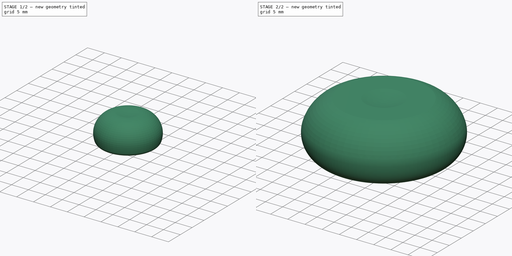
[diagram: build sequence overview — one tinted view per stage of 2, left to right]
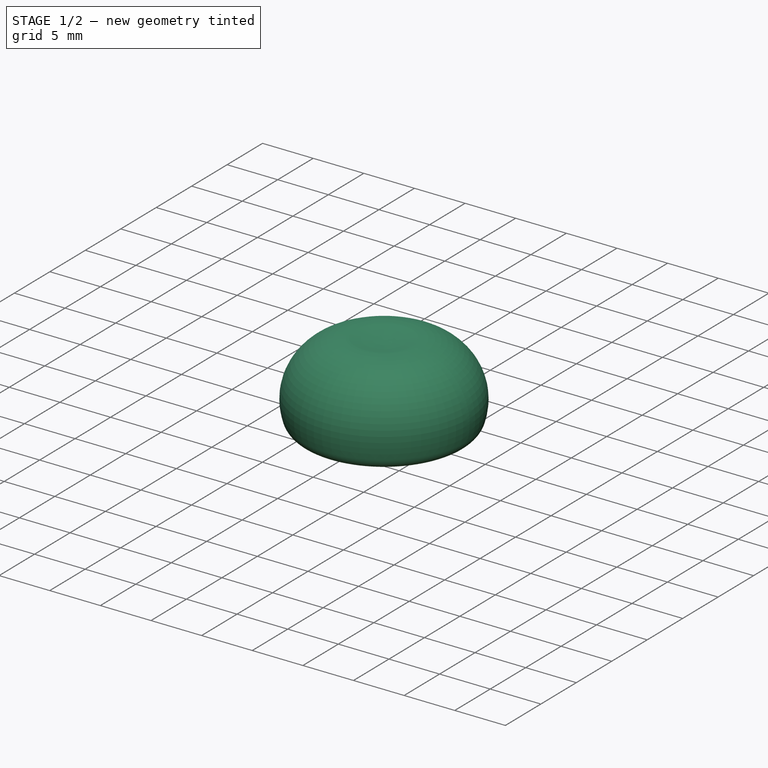
[diagram: stage 1 of 2 — iso view after this stage's code; geometry added in this stage tinted green]
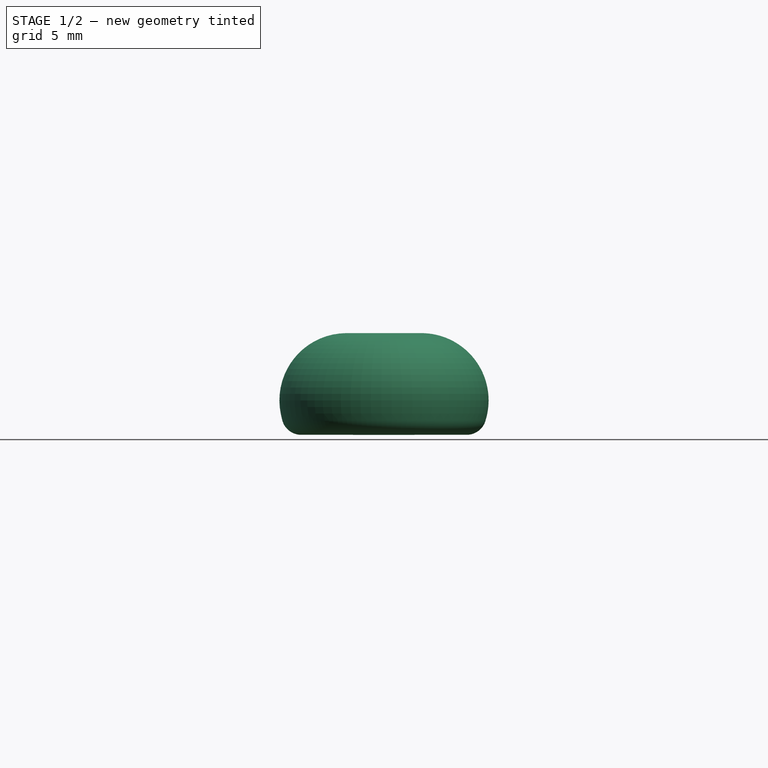
[diagram: stage 1 of 2 — front view after this stage's code; geometry added in this stage tinted green]
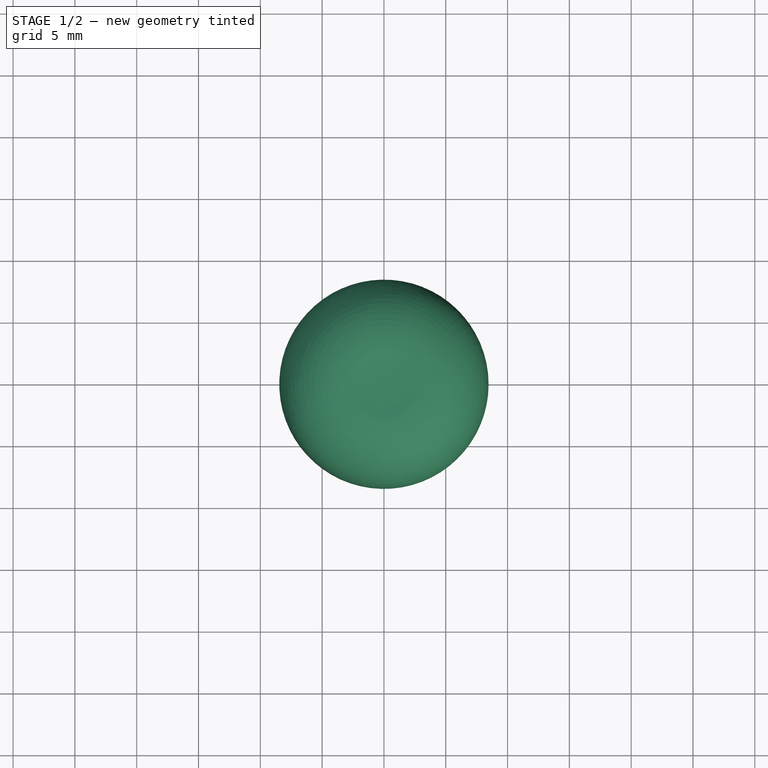
[diagram: stage 1 of 2 — top view after this stage's code; geometry added in this stage tinted green]
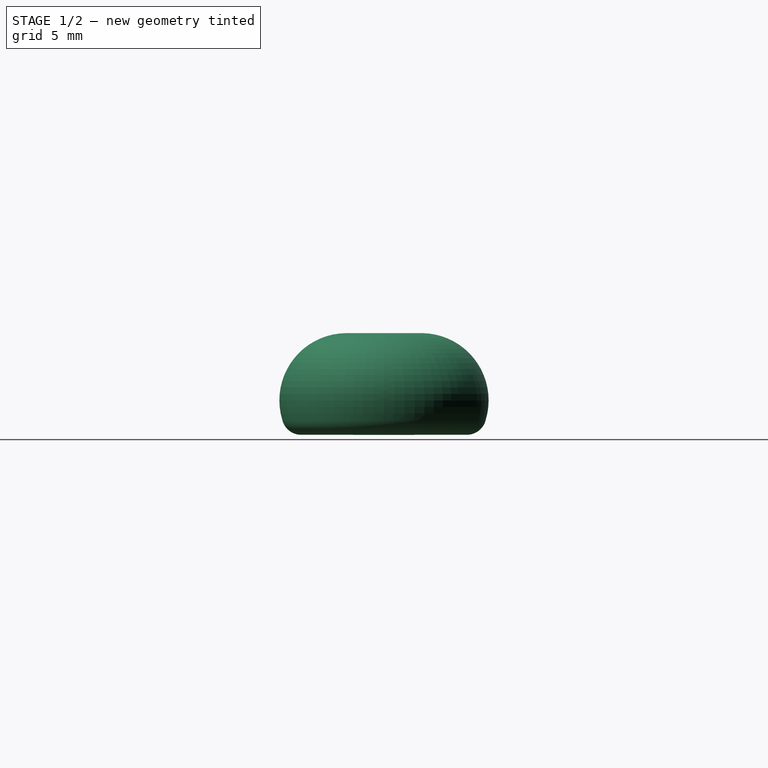
[diagram: stage 1 of 2 — right view after this stage's code; geometry added in this stage tinted green]
FCSTD DOCUMENT  (FreeCAD 1.0R38641 +468 (Git))
Label: joystick_mushroom
License: All rights reserved
LicenseURL: http://en.wikipedia.org/wiki/All_rights_reserved
objects: Sketcher::SketchObject×2, PartDesign::Revolution×1, PartDesign::Pocket×1, PartDesign::Body×1
note: 11 computed .brp shape members not serialized (recipe doc carries the construction recipe); baked Part::Feature solids carry a one-line shape summary decoded from their .brp

FEATURE [Sketcher::SketchObject] Sketch
  ArcFitTolerance = 1e-06
  AttachmentSupport = -> [XZ_Plane]
  FullyConstrained = false
  MakeInternals = false
  MapMode = 5
  Placement = pos=(0,0,0) rot=(1,0,0;1.5708rad)
  sketch-geometry (7):
    g0: ArcOfCircle CenterX=0 CenterY=25.6717 CenterZ=0 NormalX=0 NormalY=0 NormalZ=1 AngleXU=0 Radius=17.6717 StartAngle=4.71239 EndAngle=4.87262
    g1: LineSegment StartX=0 StartY=0 StartZ=0 EndX=-3.2e-15 EndY=8 EndZ=0
    g2: LineSegment StartX=0 StartY=0 StartZ=0 EndX=2.5 EndY=0 EndZ=0
    g3: LineSegment StartX=2.5 StartY=0 StartZ=0 EndX=2.5 EndY=4 EndZ=0
    g4: ArcOfCircle CenterX=2.46182 CenterY=1.32381 CenterZ=0 NormalX=0 NormalY=0 NormalZ=1 AngleXU=0 Radius=2.67647 StartAngle=0.00729041 EndAngle=1.55653
    g5: ArcOfCircle CenterX=6.69787 CenterY=1.58348 CenterZ=0 NormalX=0 NormalY=0 NormalZ=1 AngleXU=0 Radius=1.57804 StartAngle=3.29438 EndAngle=6.0451
    g6: ArcOfCircle CenterX=3.02562 CenterY=2.79029 CenterZ=0 NormalX=0 NormalY=0 NormalZ=1 AngleXU=0 Radius=5.43998 StartAngle=5.98869 EndAngle=7.8919
  constraints (15):
    c: Vertical(g0,g-1)
    c: Vertical(g0,g-1)
    c: Coincident(g1,g-1)
    c: Coincident(g1,g0)
    c: Coincident(g2,g1)
    c: PointOnObject(g2,g-1)
    c: DistanceX(g2,g2) = 2.5
    c: Coincident(g3,g2)
    c: Vertical(g3)
    c: DistanceY(g1,g1) = 8
    c: DistanceY(g3,g3) = 4
    c: Coincident(g4,g3)
    c: Coincident(g5,g4)
    c: Coincident(g6,g0)
    c: Coincident(g5,g6)
FEATURE [PartDesign::Revolution] Revolution
  Angle = 360
  Angle2 = 60
  Axis = (0,2e-16,1)
  Base = (0,0,0)
  Placement = pos=(0,0,0) rot=(1,0,0;1.5708rad)
  Profile = -> Sketch
  ReferenceAxis = -> Sketch [V_Axis]
  Reversed = true
  Suppressed = false
  Type = 0
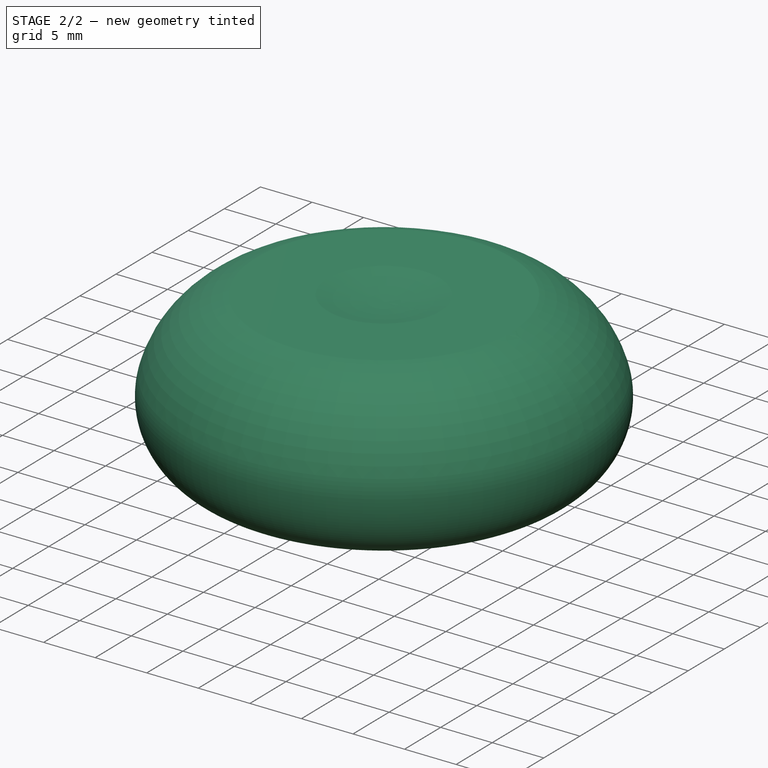
[diagram: stage 2 of 2 — iso view after this stage's code; geometry added in this stage tinted green]
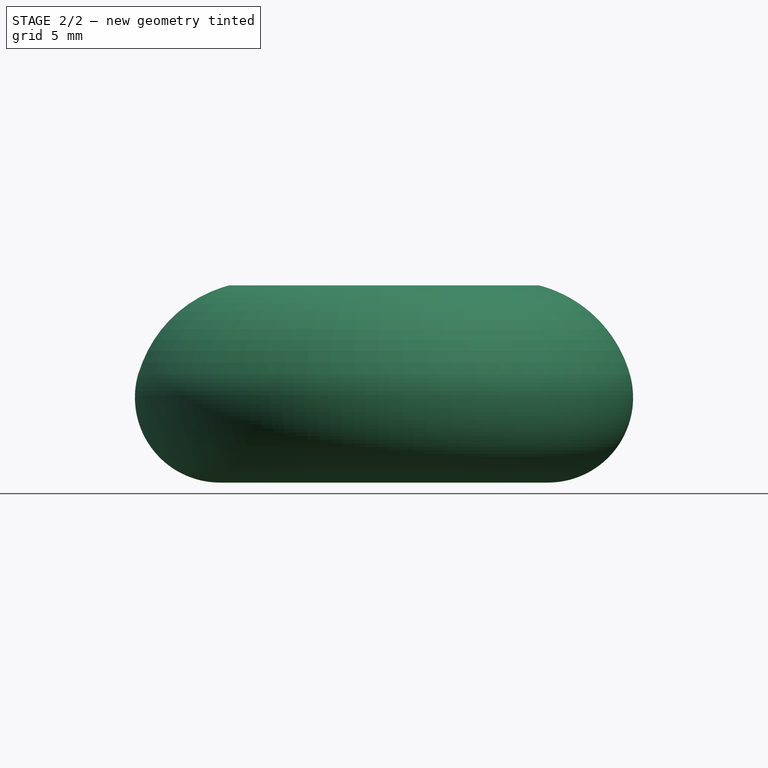
[diagram: stage 2 of 2 — front view after this stage's code; geometry added in this stage tinted green]
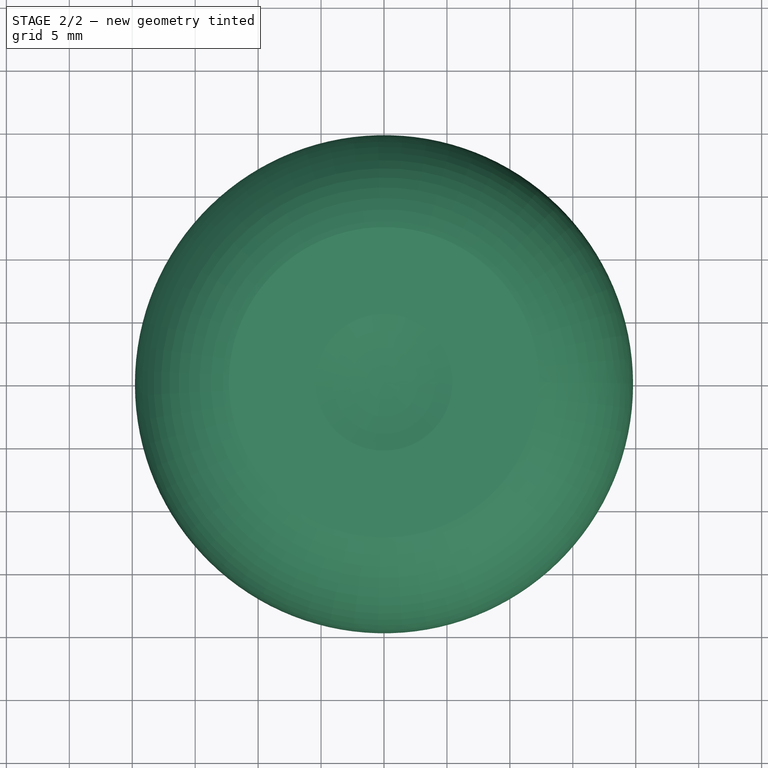
[diagram: stage 2 of 2 — top view after this stage's code; geometry added in this stage tinted green]
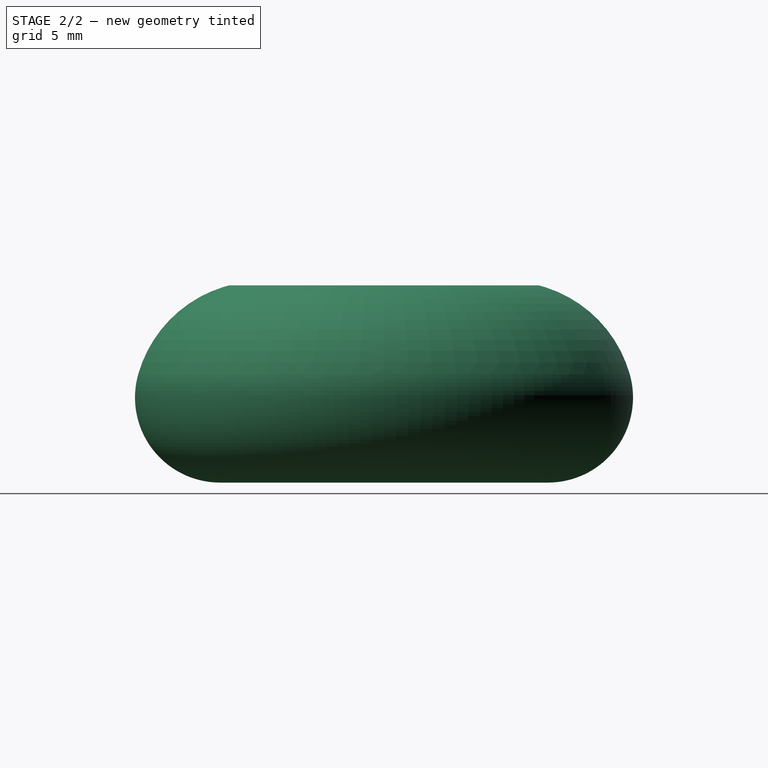
[diagram: stage 2 of 2 — right view after this stage's code; geometry added in this stage tinted green]
FEATURE [Sketcher::SketchObject] Sketch001
  ArcFitTolerance = 1e-06
  AttachmentSupport = -> [Revolution]
  FullyConstrained = true
  MakeInternals = false
  MapMode = 5
  Placement = pos=(0,0,0) rot=(1,0,0;3.14159rad)
  sketch-geometry (4):
    g0: LineSegment StartX=-0.575 StartY=0.925 StartZ=0 EndX=-0.575 EndY=-0.925 EndZ=0
    g1: LineSegment StartX=-0.575 StartY=-0.925 StartZ=0 EndX=0.575 EndY=-0.925 EndZ=0
    g2: LineSegment StartX=0.575 StartY=-0.925 StartZ=0 EndX=0.575 EndY=0.925 EndZ=0
    g3: LineSegment StartX=0.575 StartY=0.925 StartZ=0 EndX=-0.575 EndY=0.925 EndZ=0
  constraints (12):
    c: Coincident(g0,g1)
    c: Coincident(g1,g2)
    c: Coincident(g2,g3)
    c: Coincident(g3,g0)
    c: Vertical(g0)
    c: Vertical(g2)
    c: Horizontal(g1)
    c: Horizontal(g3)
    c: DistanceX(g3,g3) = 1.15
    c: DistanceY(g2,g2) = 1.85
    c: DistanceY(g-1,g0) = 0.925
    c: DistanceX(g0,g-1) = 0.575
FEATURE [PartDesign::Pocket] Pocket
  BaseFeature = -> Revolution
  Direction = (0,0,1)
  Length = 7
  Length2 = 5
  Placement = pos=(0,0,0) rot=(1,0,0;1.5708rad)
  Profile = -> Sketch001
  ReferenceAxis = -> Sketch001 [N_Axis]
  Suppressed = false
  Type = 0
FEATURE [PartDesign::Body] Body
  AllowCompound = false
  Group = -> [Sketch,Revolution,Sketch001,Pocket]
  Origin = -> Origin
  Tip = -> Pocket
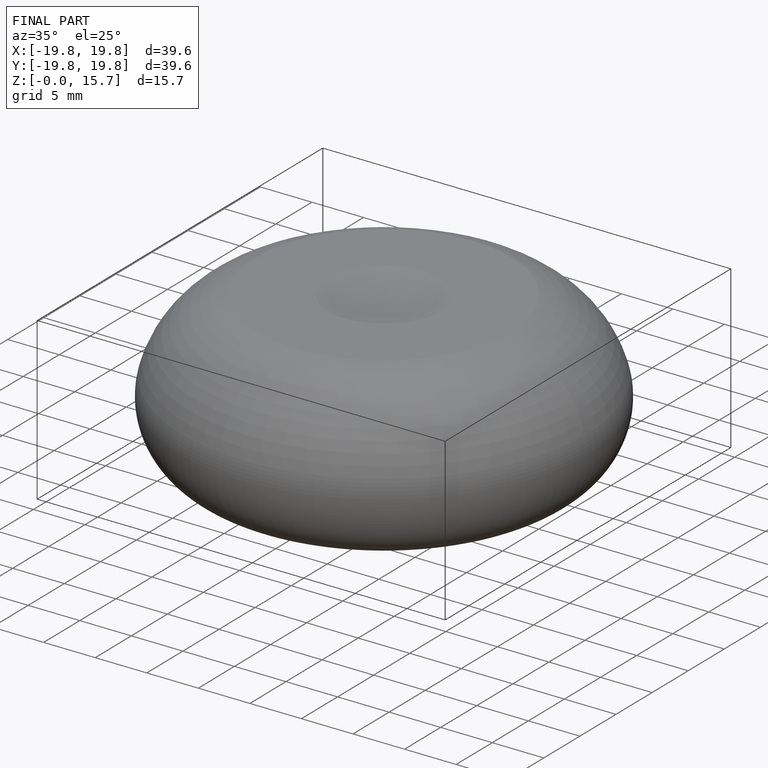
[diagram: finished part — iso view with bounding-box wireframe]
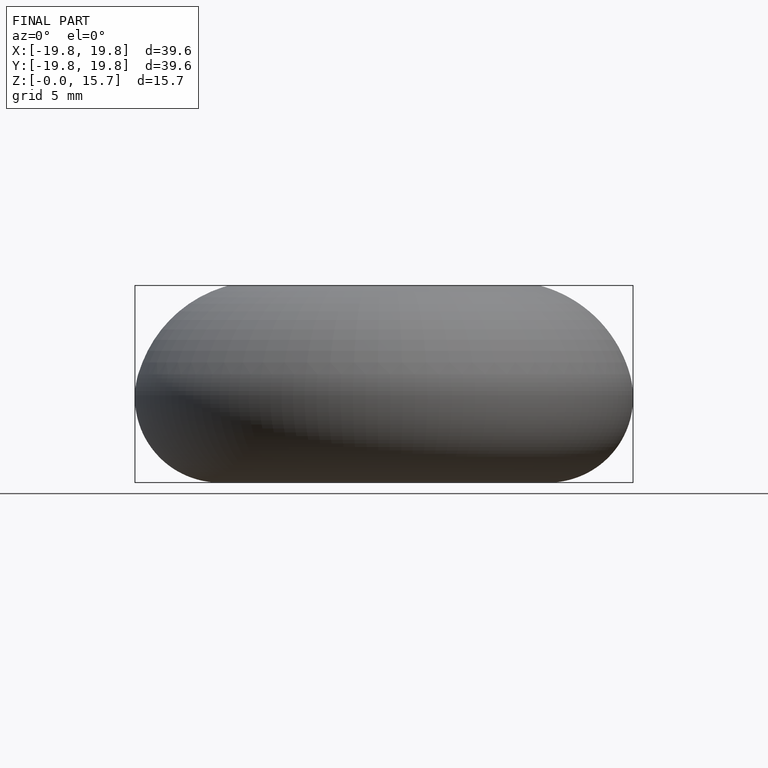
[diagram: finished part — front view with bounding-box wireframe]
